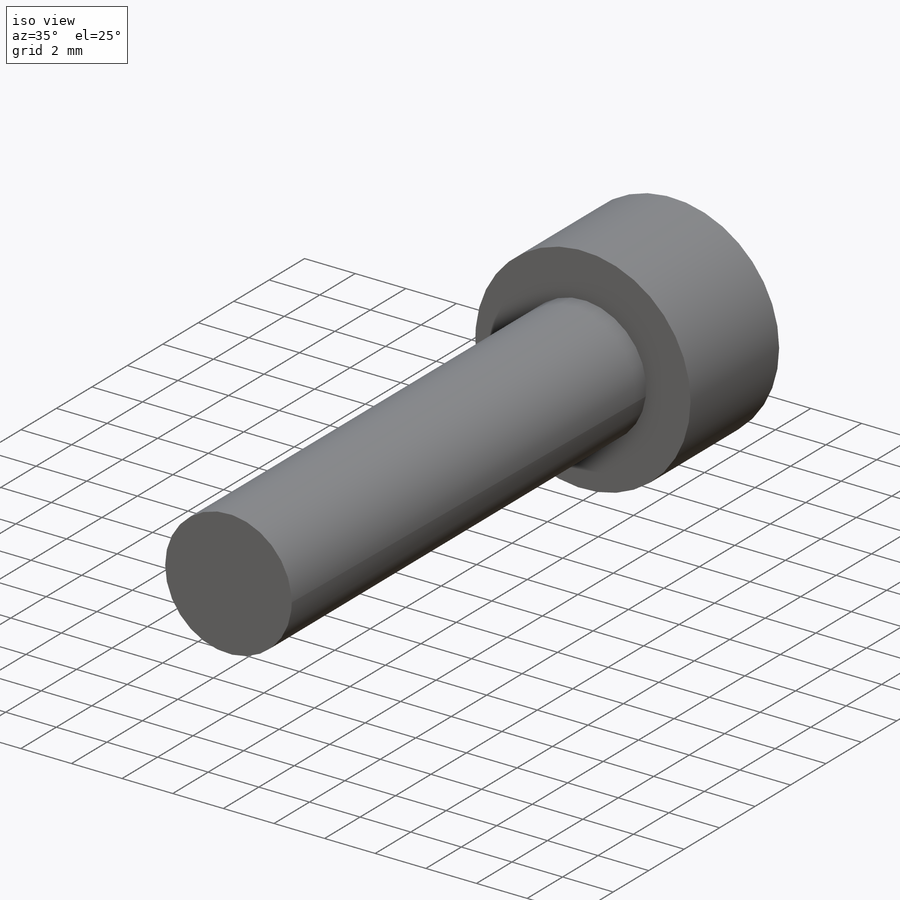
[diagram: iso view]
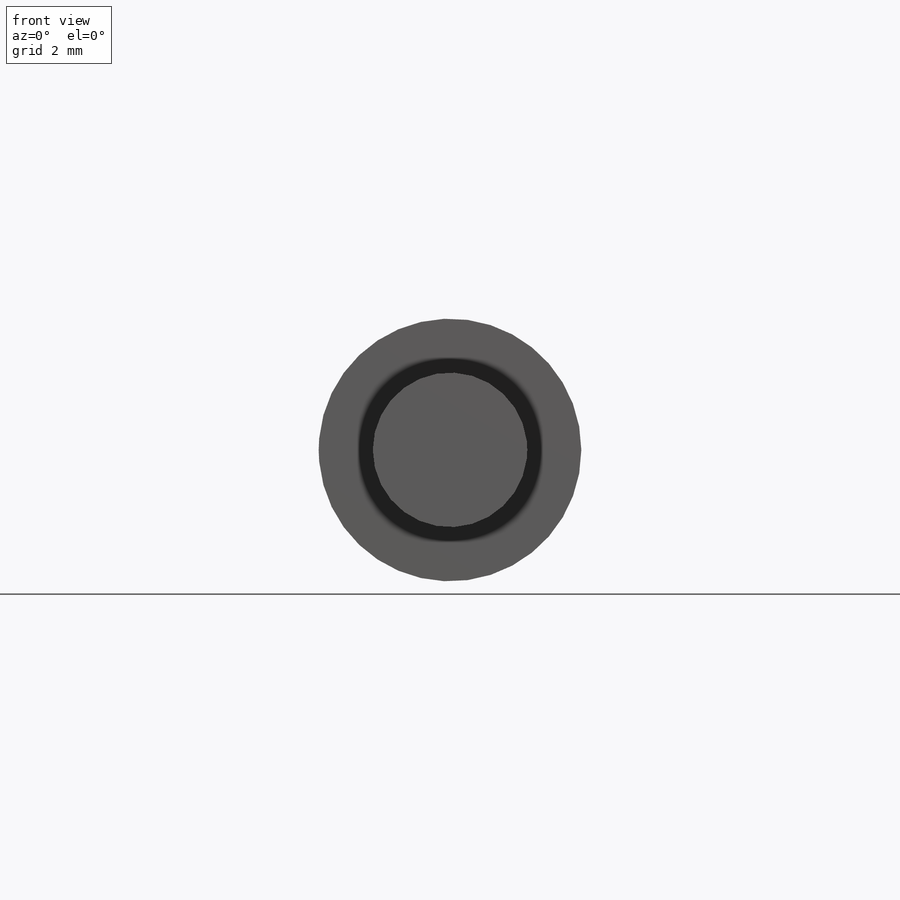
[diagram: front view]
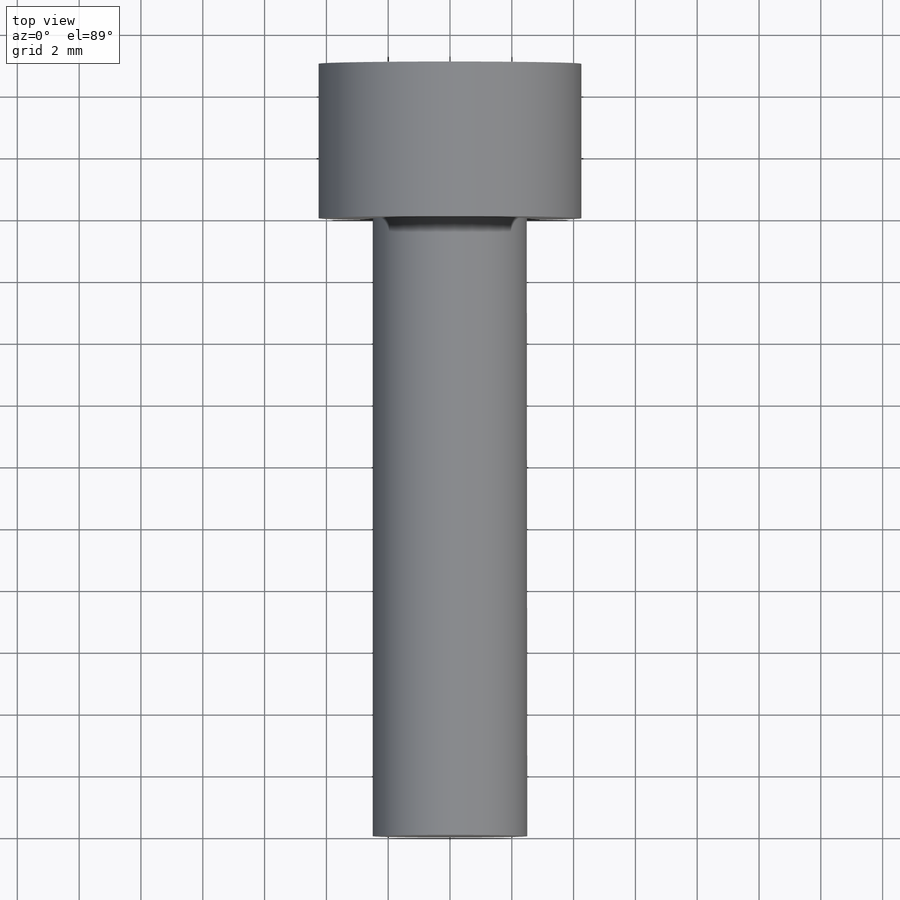
[diagram: top view]
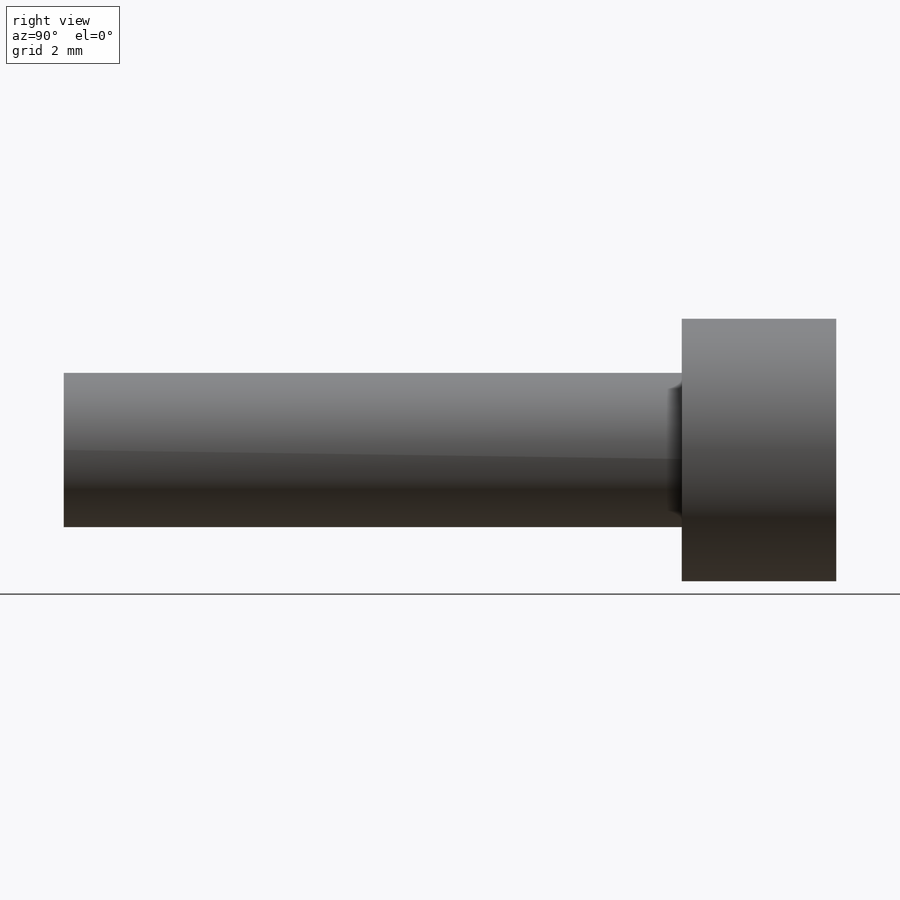
[diagram: right view]
SOLIDWORKS PART (.sldprt)
format: sldprt  version: not decoded by parser v0  size: 252,928 bytes
history: native  units: mm
features: plane x3, sketch x3, extrude x2, material x1, cut_extrude x1 + 1 further entry (+11 scaffold rows collapsed)
feature tree (22):
  scaffold x11  (default folders/planes/origin — collapsed)
  material  "Material <not specified>"
  plane  "Alzado"
  plane  "Planta"
  plane  "Vista lateral"
  "Tabla de diseño"
  sketch  "Croquis1"  dims[D1=5.0mm]
  extrude  "Saliente-Extruir1"  Depth=20mm
  sketch  "Croquis2"  dims[D1=8.5mm]
  extrude  "Saliente-Extruir2"  Depth=5mm
  sketch  "Croquis3"  dims[D1=4.0mm]
  cut_extrude  "Cortar-Extruir1"  Depth=2.5mm
decode coverage: 6 of 6 modeling features carry decoded parameters; 1 rows unclassified (native names shown)
note: suppression state not decoded; provenance and decode notes live in map.json
